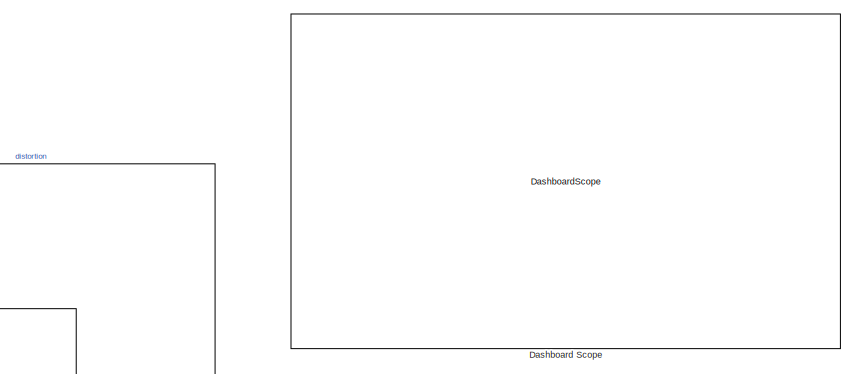
[diagram: root canvas - part 1/3, top right region]
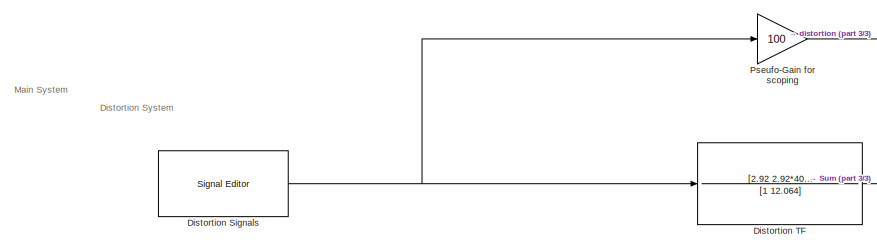
[diagram: root canvas - part 2/3, top left region]
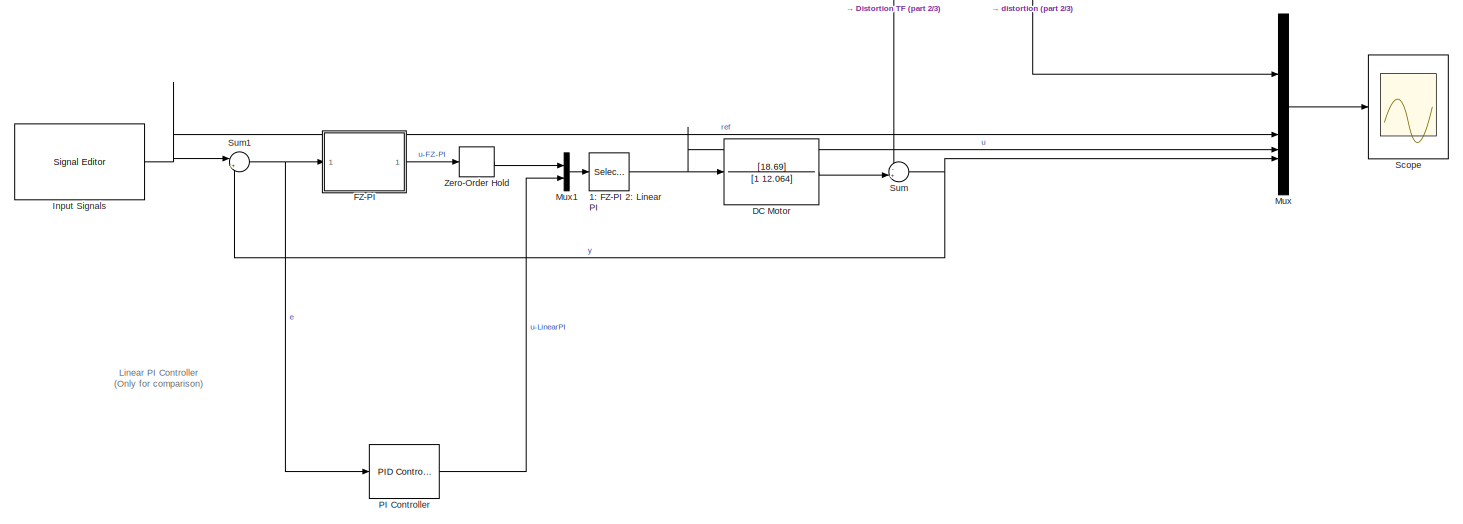
[diagram: root canvas - part 3/3, full width, bottom band]
MODEL slx_a5d345fc547d
KIND model
CONFIG AbsTol = auto
CONFIG EnableMultiTasking = off
CONFIG FixedStep = auto
CONFIG MaxStep = auto
CONFIG MinStep = auto
CONFIG RelTol = 1e-3
CONFIG SampleTimeConstraint = Unconstrained
CONFIG SolverName = VariableStepAuto
CONFIG StartTime = 0.0
CONFIG StopTime = 40
BLOCK [Selector] 1: FZ-PI 2: Linear PI
  IndexOptions = Index vector (dialog)
  Indices = 1
  InputPortWidth = 2
  OutputSizes = 1
BLOCK [TransferFcn] DC Motor
  Denominator = [1 12.064]
  Numerator = [18.69]
BLOCK [DashboardScope] Dashboard Scope
  TimeSpan = 30
  Ymax = 180
  Ymin = -20
BLOCK [Reference] Distortion Signals  REF=SignalEditorBlockLib/Signal Editor
  LibrarySourceBlock = simulink/Sources/Signal Editor
  SourceBlock = SignalEditorBlockLib/Signal Editor
  SourceType = SignalEditor
  UserDataPersistent = on
BLOCK [TransferFcn] Distortion TF
  Denominator = [1 12.064]
  Numerator = [2.92 2.92*400]
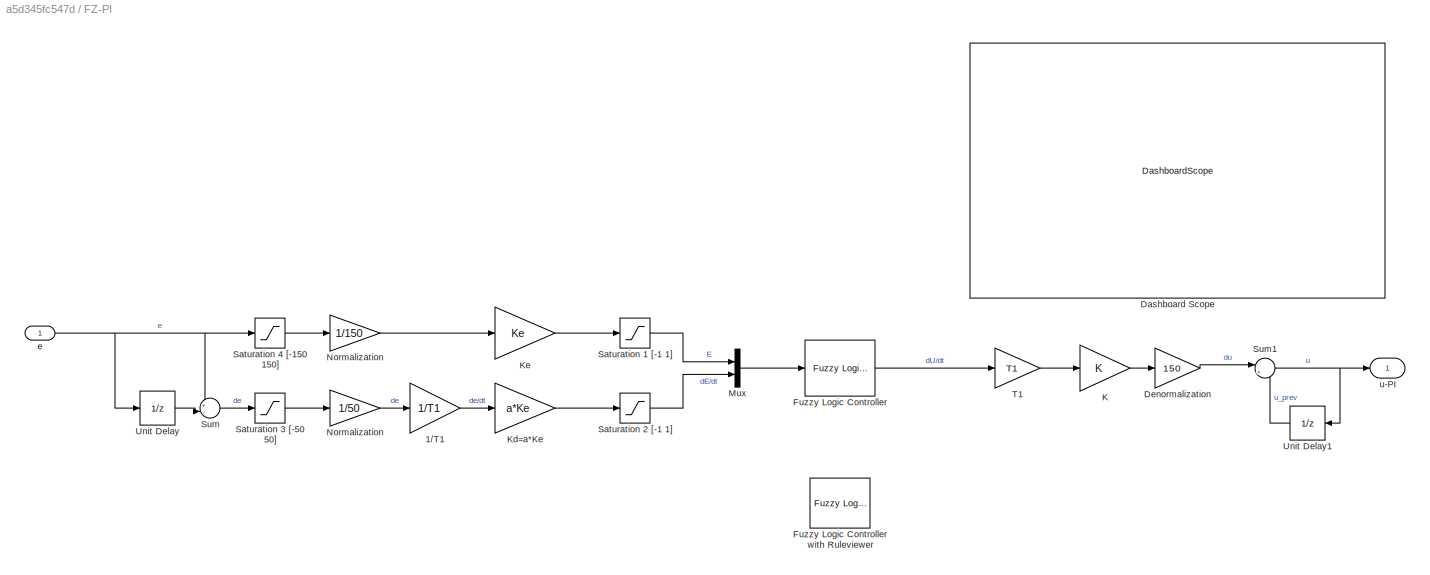
BLOCK [SubSystem] FZ-PI
BLOCK [Gain] FZ-PI/1//T1
  Gain = 1/T1
BLOCK [DashboardScope] FZ-PI/Dashboard Scope
BLOCK [Gain] FZ-PI/Denormalization
  Gain = 150
BLOCK [Reference] FZ-PI/Fuzzy Logic Controller  REF=fuzblock/Fuzzy Logic   (lib defined in mdl_858b3b3e7478)
Controller
  SourceBlock = fuzblock/Fuzzy Logic \nController
  SourceType = Fuzzy Inference System
BLOCK [Reference] FZ-PI/Fuzzy Logic Controller with Ruleviewer  REF=fuzblock/Fuzzy Logic   (lib defined in mdl_858b3b3e7478)
Controller 
with Ruleviewer
  Commented = on
  SourceBlock = fuzblock/Fuzzy Logic \nController \nwith Ruleviewer
  SourceType = Fuzzy Inference System
BLOCK [Gain] FZ-PI/K
  Gain = K
BLOCK [Gain] FZ-PI/Kd=a*Ke
  Gain = a*Ke
BLOCK [Gain] FZ-PI/Ke
  Gain = Ke
BLOCK [Mux] FZ-PI/Mux
  DisplayOption = bar
  Inputs = 2
BLOCK [Gain] FZ-PI/Normalization
  Gain = 1/50
BLOCK [Gain] FZ-PI/Normalization 
  Gain = 1/150
BLOCK [Saturate] FZ-PI/Saturation 1 [-1 1]
  LowerLimit = -1
  UpperLimit = 1
BLOCK [Saturate] FZ-PI/Saturation 2 [-1 1]
  LowerLimit = -1
  UpperLimit = 1
BLOCK [Saturate] FZ-PI/Saturation 3 [-50 50]
  LowerLimit = -50
  UpperLimit = 50
BLOCK [Saturate] FZ-PI/Saturation 4 [-150 150]
  LowerLimit = -150
  UpperLimit = 150
BLOCK [Sum] FZ-PI/Sum
  Inputs = +-|
BLOCK [Sum] FZ-PI/Sum1
  Inputs = |++
BLOCK [Gain] FZ-PI/T1
  Gain = T1
BLOCK [UnitDelay] FZ-PI/Unit Delay
  HasFrameUpgradeWarning = on
  SampleTime = -1
BLOCK [UnitDelay] FZ-PI/Unit Delay1
  HasFrameUpgradeWarning = on
  SampleTime = -1
BLOCK [Inport] FZ-PI/e
  IconDisplay = Signal name
BLOCK [Outport] FZ-PI/u-PI
  IconDisplay = Signal name
  VectorParamsAs1DForOutWhenUnconnected = off
BLOCK [Reference] Input Signals  REF=SignalEditorBlockLib/Signal Editor
  LibrarySourceBlock = simulink/Sources/Signal Editor
  SourceBlock = SignalEditorBlockLib/Signal Editor
  SourceType = SignalEditor
  UserDataPersistent = on
BLOCK [Mux] Mux
  DisplayOption = bar
BLOCK [Mux] Mux1
  DisplayOption = bar
  Inputs = 2
BLOCK [Reference] PI Controller  REF=slpidlib/PID Controller
  LibrarySourceBlock = mcblib/Controls/Controllers/PI Controller
  SourceBlock = slpidlib/PID Controller
  SourceType = PID 1dof
BLOCK [Gain] Pseufo-Gain for scoping
  Gain = 100
BLOCK [Scope] Scope
  Floating = off
  NumInputPorts = 1
  ScopeSpecificationString = Simulink.scopes.TimeScopeBlockCfg('CurrentConfiguration', extmgr.ConfigurationSet(extmgr.Configuration('Core','General UI',true,'FigureColor',[0.941176470588235 0.941176470588235 0.941176470588235],'ShowStatusbar',false),extmgr.Configuration('Core','Source UI',true),extmgr.Configuration('Sources','WiredSimulink',true),extmgr.Configuration('Visuals','Time Domain',true,'TimeAxisLabels','All','Serial...<+2579ch>
BLOCK [Sum] Sum
  Inputs = -+|
BLOCK [Sum] Sum1
  Inputs = |+-
BLOCK [ZeroOrderHold] Zero-Order Hold
  SampleTime = 0.01
ANNOTATION (root): Distortion System
ANNOTATION (root): Linear PI Controller (Only for comparison)
ANNOTATION (root): Main System
NET 1: FZ-PI 2: Linear PI:1 -> DC Motor:1, Mux:3
LINE DC Motor:1 -> Sum:2
NET Distortion Signals:1 -> Distortion TF:1, Pseufo-Gain for scoping:1
LINE Distortion TF:1 -> Sum:1
LINE FZ-PI/1//T1:1 -> FZ-PI/Kd=a*Ke:1
LINE FZ-PI/Denormalization:1 -> FZ-PI/Sum1:1
LINE FZ-PI/Fuzzy Logic Controller:1 -> FZ-PI/T1:1
LINE FZ-PI/K:1 -> FZ-PI/Denormalization:1
LINE FZ-PI/Kd=a*Ke:1 -> FZ-PI/Saturation 2 [-1 1]:1
LINE FZ-PI/Ke:1 -> FZ-PI/Saturation 1 [-1 1]:1
LINE FZ-PI/Mux:1 -> FZ-PI/Fuzzy Logic Controller:1
LINE FZ-PI/Normalization :1 -> FZ-PI/Ke:1
LINE FZ-PI/Normalization:1 -> FZ-PI/1//T1:1
LINE FZ-PI/Saturation 1 [-1 1]:1 -> FZ-PI/Mux:1
LINE FZ-PI/Saturation 2 [-1 1]:1 -> FZ-PI/Mux:2
LINE FZ-PI/Saturation 3 [-50 50]:1 -> FZ-PI/Normalization:1
LINE FZ-PI/Saturation 4 [-150 150]:1 -> FZ-PI/Normalization :1
NET FZ-PI/Sum1:1 -> FZ-PI/Unit Delay1:1, FZ-PI/u-PI:1
LINE FZ-PI/Sum:1 -> FZ-PI/Saturation 3 [-50 50]:1
LINE FZ-PI/T1:1 -> FZ-PI/K:1
LINE FZ-PI/Unit Delay1:1 -> FZ-PI/Sum1:2
LINE FZ-PI/Unit Delay:1 -> FZ-PI/Sum:2
NET FZ-PI/e:1 -> FZ-PI/Saturation 4 [-150 150]:1, FZ-PI/Sum:1, FZ-PI/Unit Delay:1
LINE FZ-PI:1 -> Zero-Order Hold:1
NET Input Signals:1 -> Mux:2, Sum1:1
LINE Mux1:1 -> 1: FZ-PI 2: Linear PI:1
LINE Mux:1 -> Scope:1
LINE PI Controller:1 -> Mux1:2
LINE Pseufo-Gain for scoping:1 -> Mux:1
NET Sum1:1 -> FZ-PI:1, PI Controller:1
NET Sum:1 -> Mux:4, Sum1:2
LINE Zero-Order Hold:1 -> Mux1:1
note: NET lines group one-source signal fan-out (src -> all destinations, sorted); 1:1 wires keep LINE
